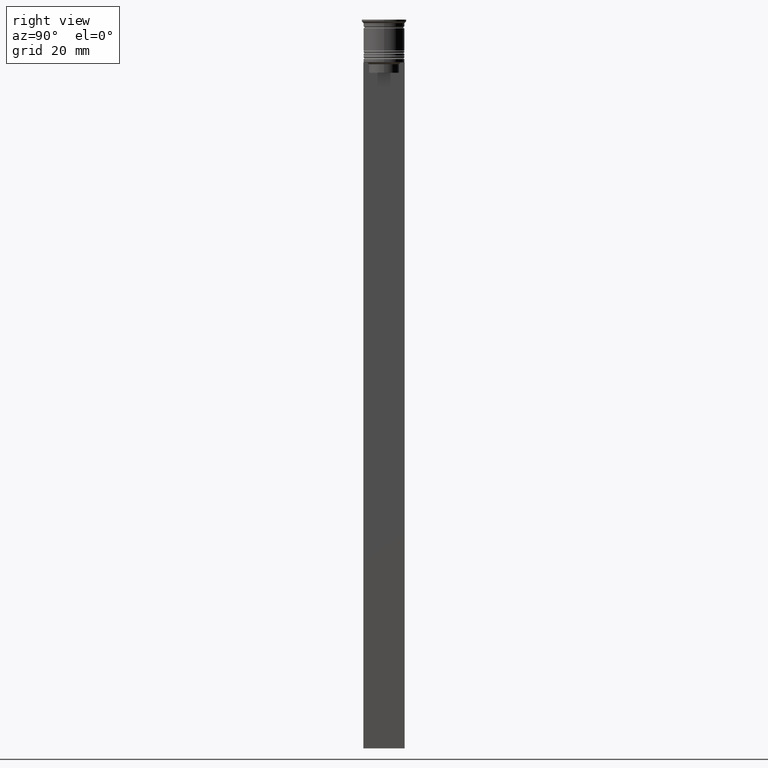
[diagram: clean part render]
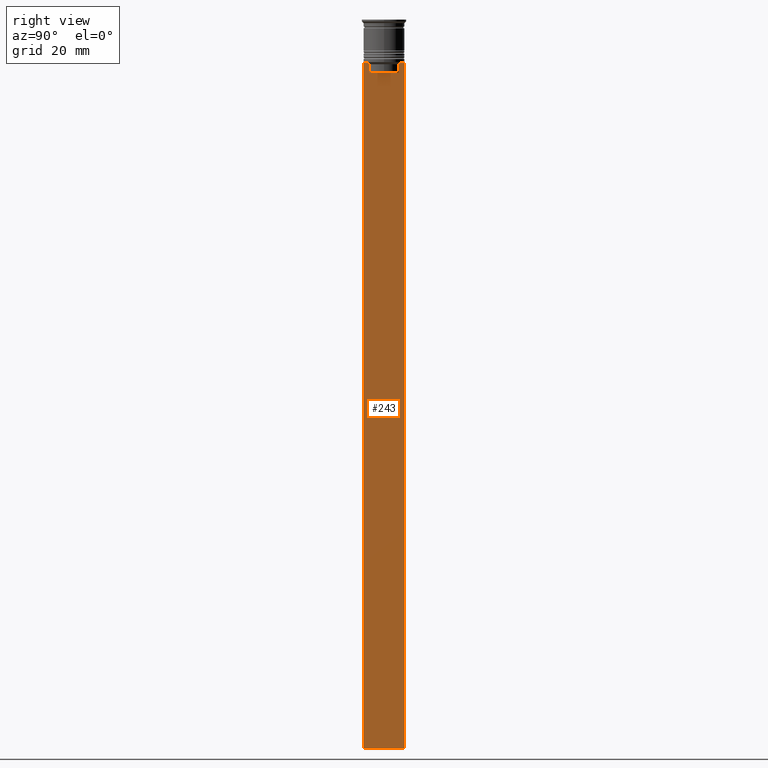
[diagram: same view with one face highlighted and labeled with its STEP entity id]
A machine part, right view. The second image highlights one B-rep face of the part: STEP entity #243.
In plain terms, the highlighted planar face has unit normal (-1, 0, 0).
Its self-contained STEP definition (entity closure, byte-faithful):
#5 = LINE ( 'NONE', #801, #1050 ) ;
#66 = EDGE_CURVE ( 'NONE', #1140, #1564, #2154, .T. ) ;
#85 = CARTESIAN_POINT ( 'NONE',  ( 0.5000000000000002220, 6.000000000000000888, -212.5000000000000284 ) ) ;
#149 = CARTESIAN_POINT ( 'NONE',  ( 0.5000000000000002220, -4.539195586926423331, -12.83338928448044314 ) ) ;
#160 = CARTESIAN_POINT ( 'NONE',  ( 0.5000000000000002220, 5.878775382679627626, -12.50000000000000000 ) ) ;
#232 = CARTESIAN_POINT ( 'NONE',  ( 0.5000000000000002220, -6.000000000000000000, -12.50000000000000000 ) ) ;
#243 = ADVANCED_FACE ( 'NONE', ( #1873 ), #1702, .F. ) ;
#302 = EDGE_CURVE ( 'NONE', #1592, #703, #1303, .T. ) ;
#321 = DIRECTION ( 'NONE',  ( 0.000000000000000000, 0.000000000000000000, 1.000000000000000000 ) ) ;
#329 = CARTESIAN_POINT ( 'NONE',  ( 0.5000000000000002220, 4.371498598878878816, -13.00000000000000178 ) ) ;
#360 = CARTESIAN_POINT ( 'NONE',  ( 0.5000000000000002220, -4.371498598878878816, -15.50000000000000000 ) ) ;
#442 = VERTEX_POINT ( 'NONE', #2454 ) ;
#453 = VERTEX_POINT ( 'NONE', #1119 ) ;
#478 = DIRECTION ( 'NONE',  ( 0.000000000000000000, 0.000000000000000000, -1.000000000000000000 ) ) ;
#484 = CARTESIAN_POINT ( 'NONE',  ( 0.5000000000000002220, -6.000000000000000000, -212.5000000000000284 ) ) ;
#510 = ORIENTED_EDGE ( 'NONE', *, *, #1954, .T. ) ;
#524 = DIRECTION ( 'NONE',  ( 0.000000000000000000, 0.000000000000000000, -1.000000000000000000 ) ) ;
#535 = LINE ( 'NONE', #484, #1819 ) ;
#578 = LINE ( 'NONE', #1388, #885 ) ;
#580 = VECTOR ( 'NONE', #2306, 1000.000000000000000 ) ;
#601 = DIRECTION ( 'NONE',  ( 0.000000000000000000, -1.000000000000000000, 0.000000000000000000 ) ) ;
#610 = ORIENTED_EDGE ( 'NONE', *, *, #1961, .T. ) ;
#638 = LINE ( 'NONE', #1839, #2489 ) ;
#703 = VERTEX_POINT ( 'NONE', #1407 ) ;
#713 = CARTESIAN_POINT ( 'NONE',  ( 0.5000000000000002220, 4.706831415367288329, -12.66671683478479160 ) ) ;
#757 = ORIENTED_EDGE ( 'NONE', *, *, #1971, .T. ) ;
#784 = VERTEX_POINT ( 'NONE', #1671 ) ;
#801 = CARTESIAN_POINT ( 'NONE',  ( 0.5000000000000002220, -6.000000000000000000, -12.50000000000000000 ) ) ;
#835 = VERTEX_POINT ( 'NONE', #1105 ) ;
#842 = ORIENTED_EDGE ( 'NONE', *, *, #1011, .T. ) ;
#870 = DIRECTION ( 'NONE',  ( 0.000000000000000000, 1.000000000000000000, 0.000000000000000000 ) ) ;
#878 = EDGE_CURVE ( 'NONE', #442, #784, #939, .T. ) ;
#885 = VECTOR ( 'NONE', #1765, 1000.000000000000000 ) ;
#929 = VECTOR ( 'NONE', #2313, 1000.000000000000000 ) ;
#939 = B_SPLINE_CURVE_WITH_KNOTS ( 'NONE', 3,
 ( #2438, #713, #1302, #329 ),
 .UNSPECIFIED., .F., .F.,
 ( 4, 4 ),
 ( 0.008336552452178421987, 0.009045730124312839626 ),
 .UNSPECIFIED. ) ;
#1009 = VECTOR ( 'NONE', #1745, 1000.000000000000000 ) ;
#1011 = EDGE_CURVE ( 'NONE', #835, #1562, #2490, .T. ) ;
#1050 = VECTOR ( 'NONE', #601, 1000.000000000000000 ) ;
#1099 = VECTOR ( 'NONE', #1293, 1000.000000000000000 ) ;
#1105 = CARTESIAN_POINT ( 'NONE',  ( 0.5000000000000002220, 4.371498598878878816, -15.50000000000000000 ) ) ;
#1119 = CARTESIAN_POINT ( 'NONE',  ( 0.5000000000000002220, 6.000000000000000888, -12.50000000000000000 ) ) ;
#1122 = ORIENTED_EDGE ( 'NONE', *, *, #878, .T. ) ;
#1140 = VERTEX_POINT ( 'NONE', #1404 ) ;
#1165 = DIRECTION ( 'NONE',  ( 0.000000000000000000, -1.000000000000000000, 0.000000000000000000 ) ) ;
#1264 = ORIENTED_EDGE ( 'NONE', *, *, #1632, .T. ) ;
#1293 = DIRECTION ( 'NONE',  ( -0.000000000000000000, -0.000000000000000000, 1.000000000000000000 ) ) ;
#1302 = CARTESIAN_POINT ( 'NONE',  ( 0.5000000000000002220, 4.539195634199896467, -12.83338923751318816 ) ) ;
#1303 = B_SPLINE_CURVE_WITH_KNOTS ( 'NONE', 3,
 ( #1900, #149, #1308, #2070 ),
 .UNSPECIFIED., .F., .F.,
 ( 4, 4 ),
 ( 0.02089901220910808308, 0.02161421017310286019 ),
 .UNSPECIFIED. ) ;
#1308 = CARTESIAN_POINT ( 'NONE',  ( 0.5000000000000002220, -4.706831372970962768, -12.66671687695981774 ) ) ;
#1332 = ORIENTED_EDGE ( 'NONE', *, *, #2466, .F. ) ;
#1388 = CARTESIAN_POINT ( 'NONE',  ( 0.5000000000000002220, 4.371498598878878816, 0.000000000000000000 ) ) ;
#1398 = CARTESIAN_POINT ( 'NONE',  ( 0.5000000000000002220, -6.000000000000000000, -12.50000000000000000 ) ) ;
#1404 = CARTESIAN_POINT ( 'NONE',  ( 0.5000000000000002220, -5.878775382679627626, -12.50000000000000000 ) ) ;
#1407 = CARTESIAN_POINT ( 'NONE',  ( 0.5000000000000002220, -4.874423042781576676, -12.50000000000000000 ) ) ;
#1499 = CARTESIAN_POINT ( 'NONE',  ( 0.5000000000000002220, -4.371498598878878816, 0.000000000000000000 ) ) ;
#1515 = CARTESIAN_POINT ( 'NONE',  ( 0.5000000000000002220, -6.000000000000000000, -0.4584054212077061097 ) ) ;
#1534 = VERTEX_POINT ( 'NONE', #160 ) ;
#1550 = CARTESIAN_POINT ( 'NONE',  ( 0.5000000000000002220, 4.399999999999999467, -15.50000000000000000 ) ) ;
#1558 = CARTESIAN_POINT ( 'NONE',  ( 0.5000000000000002220, -6.000000000000000000, -12.50000000000000000 ) ) ;
#1562 = VERTEX_POINT ( 'NONE', #360 ) ;
#1564 = VERTEX_POINT ( 'NONE', #1789 ) ;
#1576 = LINE ( 'NONE', #1398, #929 ) ;
#1580 = VECTOR ( 'NONE', #1165, 1000.000000000000000 ) ;
#1592 = VERTEX_POINT ( 'NONE', #2480 ) ;
#1605 = EDGE_LOOP ( 'NONE', ( #610, #1122, #1673, #842, #2030, #2081, #510, #1806, #1264, #1719, #1332, #757 ) ) ;
#1632 = EDGE_CURVE ( 'NONE', #1564, #1648, #638, .T. ) ;
#1639 = CARTESIAN_POINT ( 'NONE',  ( 0.5000000000000002220, -6.000000000000000000, -212.5000000000000284 ) ) ;
#1648 = VERTEX_POINT ( 'NONE', #1639 ) ;
#1671 = CARTESIAN_POINT ( 'NONE',  ( 0.5000000000000002220, 4.371498598878878816, -13.00000000000000178 ) ) ;
#1673 = ORIENTED_EDGE ( 'NONE', *, *, #1987, .T. ) ;
#1702 = PLANE ( 'NONE',  #1707 ) ;
#1707 = AXIS2_PLACEMENT_3D ( 'NONE', #1515, #2082, #321 ) ;
#1719 = ORIENTED_EDGE ( 'NONE', *, *, #2433, .T. ) ;
#1745 = DIRECTION ( 'NONE',  ( 0.000000000000000000, -1.000000000000000000, 0.000000000000000000 ) ) ;
#1765 = DIRECTION ( 'NONE',  ( 0.000000000000000000, 0.000000000000000000, -1.000000000000000000 ) ) ;
#1779 = VECTOR ( 'NONE', #524, 1000.000000000000000 ) ;
#1789 = CARTESIAN_POINT ( 'NONE',  ( 0.5000000000000002220, -6.000000000000000000, -12.50000000000000000 ) ) ;
#1806 = ORIENTED_EDGE ( 'NONE', *, *, #66, .T. ) ;
#1819 = VECTOR ( 'NONE', #870, 1000.000000000000000 ) ;
#1839 = CARTESIAN_POINT ( 'NONE',  ( 0.5000000000000002220, -6.000000000000000000, -0.4584054212077061097 ) ) ;
#1873 = FACE_OUTER_BOUND ( 'NONE', #1605, .T. ) ;
#1900 = CARTESIAN_POINT ( 'NONE',  ( 0.5000000000000002220, -4.371498598878878816, -13.00000000000000178 ) ) ;
#1954 = EDGE_CURVE ( 'NONE', #703, #1140, #2127, .T. ) ;
#1961 = EDGE_CURVE ( 'NONE', #1534, #442, #5, .T. ) ;
#1971 = EDGE_CURVE ( 'NONE', #453, #1534, #1576, .T. ) ;
#1987 = EDGE_CURVE ( 'NONE', #784, #835, #578, .T. ) ;
#2028 = CARTESIAN_POINT ( 'NONE',  ( 0.5000000000000002220, 6.000000000000000888, -0.4584054212077061097 ) ) ;
#2030 = ORIENTED_EDGE ( 'NONE', *, *, #2432, .T. ) ;
#2041 = LINE ( 'NONE', #1499, #1099 ) ;
#2070 = CARTESIAN_POINT ( 'NONE',  ( 0.5000000000000002220, -4.874423042781576676, -12.50000000000000000 ) ) ;
#2081 = ORIENTED_EDGE ( 'NONE', *, *, #302, .T. ) ;
#2082 = DIRECTION ( 'NONE',  ( -1.000000000000000000, 0.000000000000000000, 0.000000000000000000 ) ) ;
#2127 = LINE ( 'NONE', #1558, #1009 ) ;
#2154 = LINE ( 'NONE', #232, #1580 ) ;
#2179 = VERTEX_POINT ( 'NONE', #85 ) ;
#2218 = LINE ( 'NONE', #2028, #1779 ) ;
#2306 = DIRECTION ( 'NONE',  ( 0.000000000000000000, -1.000000000000000000, 0.000000000000000000 ) ) ;
#2313 = DIRECTION ( 'NONE',  ( 0.000000000000000000, -1.000000000000000000, 0.000000000000000000 ) ) ;
#2432 = EDGE_CURVE ( 'NONE', #1562, #1592, #2041, .T. ) ;
#2433 = EDGE_CURVE ( 'NONE', #1648, #2179, #535, .T. ) ;
#2438 = CARTESIAN_POINT ( 'NONE',  ( 0.5000000000000002220, 4.874423042781576676, -12.50000000000000000 ) ) ;
#2454 = CARTESIAN_POINT ( 'NONE',  ( 0.5000000000000002220, 4.874423042781576676, -12.50000000000000000 ) ) ;
#2466 = EDGE_CURVE ( 'NONE', #453, #2179, #2218, .T. ) ;
#2480 = CARTESIAN_POINT ( 'NONE',  ( 0.5000000000000002220, -4.371498598878878816, -13.00000000000000178 ) ) ;
#2489 = VECTOR ( 'NONE', #478, 1000.000000000000000 ) ;
#2490 = LINE ( 'NONE', #1550, #580 ) ;